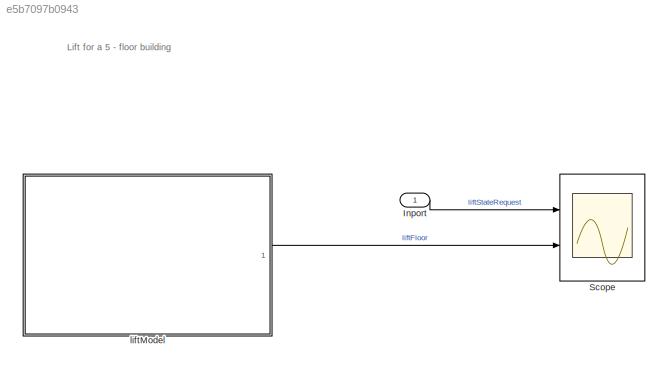
MODEL slx_e5b7097b0943
KIND model
CONFIG AbsTol = auto
CONFIG EnableMultiTasking = off
CONFIG FixedStep = 1
CONFIG MaxStep = auto
CONFIG MinStep = auto
CONFIG RelTol = 1e-3
CONFIG SampleTimeConstraint = Unconstrained
CONFIG SolverName = FixedStepAuto
CONFIG StartTime = 0.0
CONFIG StopTime = 20
BLOCK [Inport] Inport
BLOCK [Scope] Scope
  Floating = off
  NumInputPorts = 2
  Ports = [2]
  ScopeSpecificationString = Simulink.scopes.TimeScopeBlockCfg('CurrentConfiguration', extmgr.ConfigurationSet(extmgr.Configuration('Core','General UI',true),extmgr.Configuration('Core','Source UI',true),extmgr.Configuration('Sources','WiredSimulink',true),extmgr.Configuration('Visuals','Time Domain',true,'SerializedDisplays',{struct('MinYLimReal','-2.875','MaxYLimReal','5.875','YLabelReal','','MinYLimMag','0.00000','MaxYLimM...<+2024ch>
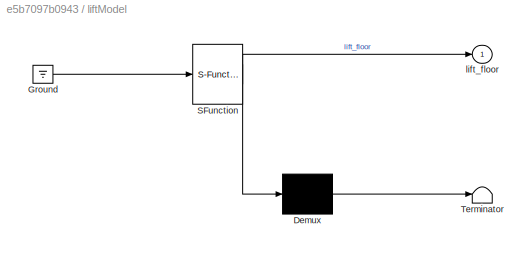
BLOCK [SubSystem] liftModel
  ErrorFcn = Stateflow.Translate.translate
  PermitHierarchicalResolution = ExplicitOnly
  Ports = [0, 1]
  RequestExecContextInheritance = off
  SFBlockType = Chart
  TreatAsAtomicUnit = on
BLOCK [Demux] liftModel/ Demux 
  Outputs = 1
  Ports = [1, 1]
BLOCK [Ground] liftModel/ Ground 
BLOCK [S-Function] liftModel/ SFunction 
  EnableBusSupport = on
  FunctionName = sf_sfun
  Parameters = lift_state_req
  PortCounts = [1 2]
  Ports = [1, 2]
  SFcnIsStateOwnerBlock = off
  SFunctionDeploymentMode = off
  Tag = Stateflow S-Function 3
BLOCK [Terminator] liftModel/ Terminator 
BLOCK [Outport] liftModel/lift_floor
ANNOTATION (root): Lift for a 5 - floor building
LINE Inport:1 -> Scope:1
LINE liftModel:1 -> Scope:2
CHART liftModel states=13 transitions=75
  STATE_LABEL 'floor = checkFloor'
  STATE_LABEL 'Do not put any code along\nthe transitions that run\ndown the right side!'
  STATE_LABEL '% Check Next Floor'
  STATE_LABEL '[lift_state_req(index) == 0]'
  STATE_LABEL '{floor = 0;}'
  STATE_LABEL '[lift_state_req(index) == 1]'
  STATE_LABEL '{floor = 1;}'
  STATE_LABEL '[lift_state_req(index) == 2]'
  STATE_LABEL '{floor = 2;}'
  STATE_LABEL '[lift_state_req(index) == 3]'
  STATE_LABEL '{floor = 3;}'
  STATE_LABEL '[lift_state_req(index) == 4]'
  STATE_LABEL '{floor = 4;}'
  STATE_LABEL '[lift_state_req(index) == 5]'
  STATE_LABEL '{floor = 0}'
  STATE_LABEL '{floor = 5;}'
  STATE_LABEL 'Do not put any code along\nthe transitions that run\ndown the right side!'
  STATE_LABEL 'running\n'
  STATE_LABEL 'check\nentry:\nlift_floor = checkFloor()'
  STATE_LABEL 'ground\n'
  STATE_LABEL 'first\n'
  STATE_LABEL 'second_\n'
  STATE_LABEL 'third_\n'
  STATE_LABEL 'fourth_\n'
  STATE_LABEL 'fifth_\n'
  STATE_LABEL '{index = index + 1}'
  STATE_LABEL '[lift_floor == 0]'
  STATE_LABEL '[true]'
  STATE_LABEL '[lift_floor == 1]'
  STATE_LABEL '[true]'
  STATE_LABEL '[lift_floor == 2]'
  STATE_LABEL '[true]'
  STATE_LABEL '[lift_floor == 3]'
  STATE_LABEL '[true]'
  STATE_LABEL '[lift_floor == 4]'
  STATE_LABEL '[true]'
  STATE_LABEL '[lift_floor == 5]'
  STATE_LABEL '[true]'
  STATE_LABEL 'check\nentry:\nlift_floor = checkFloor()'
  STATE_LABEL 'ground\n'
CHART  states=0 transitions=0
